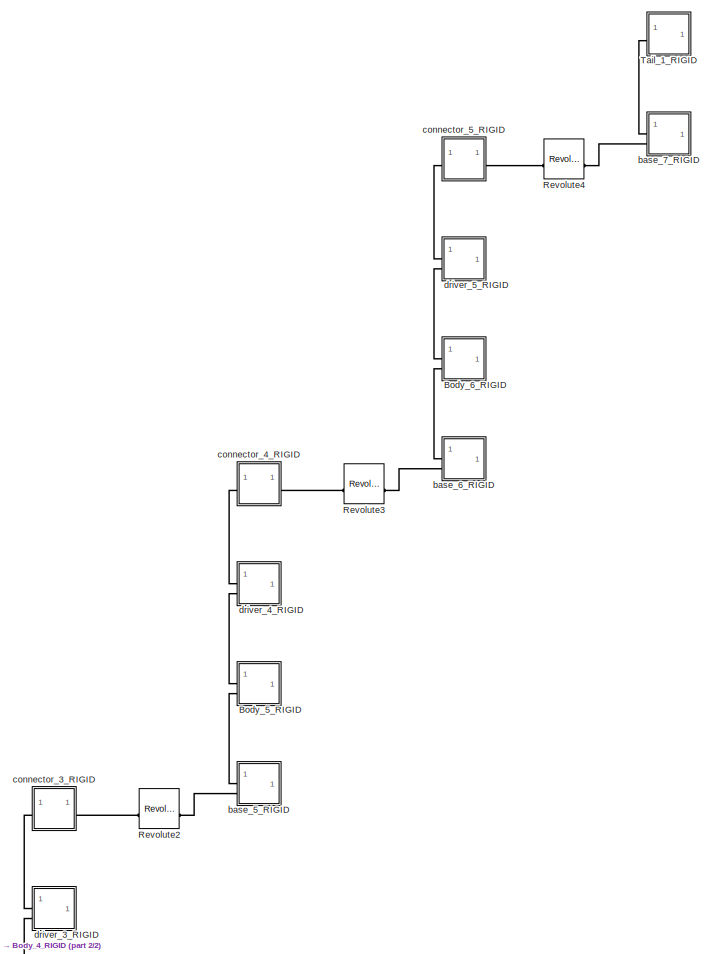
[diagram: root canvas - part 1/2, top right region]
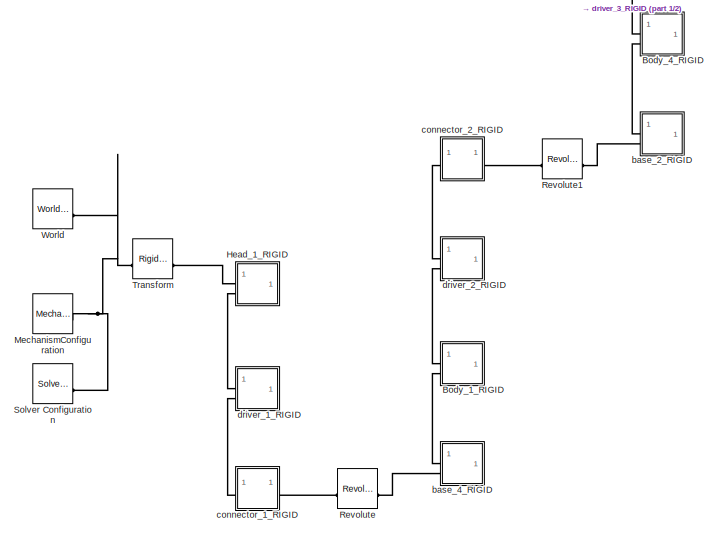
[diagram: root canvas - part 2/2, bottom left region]
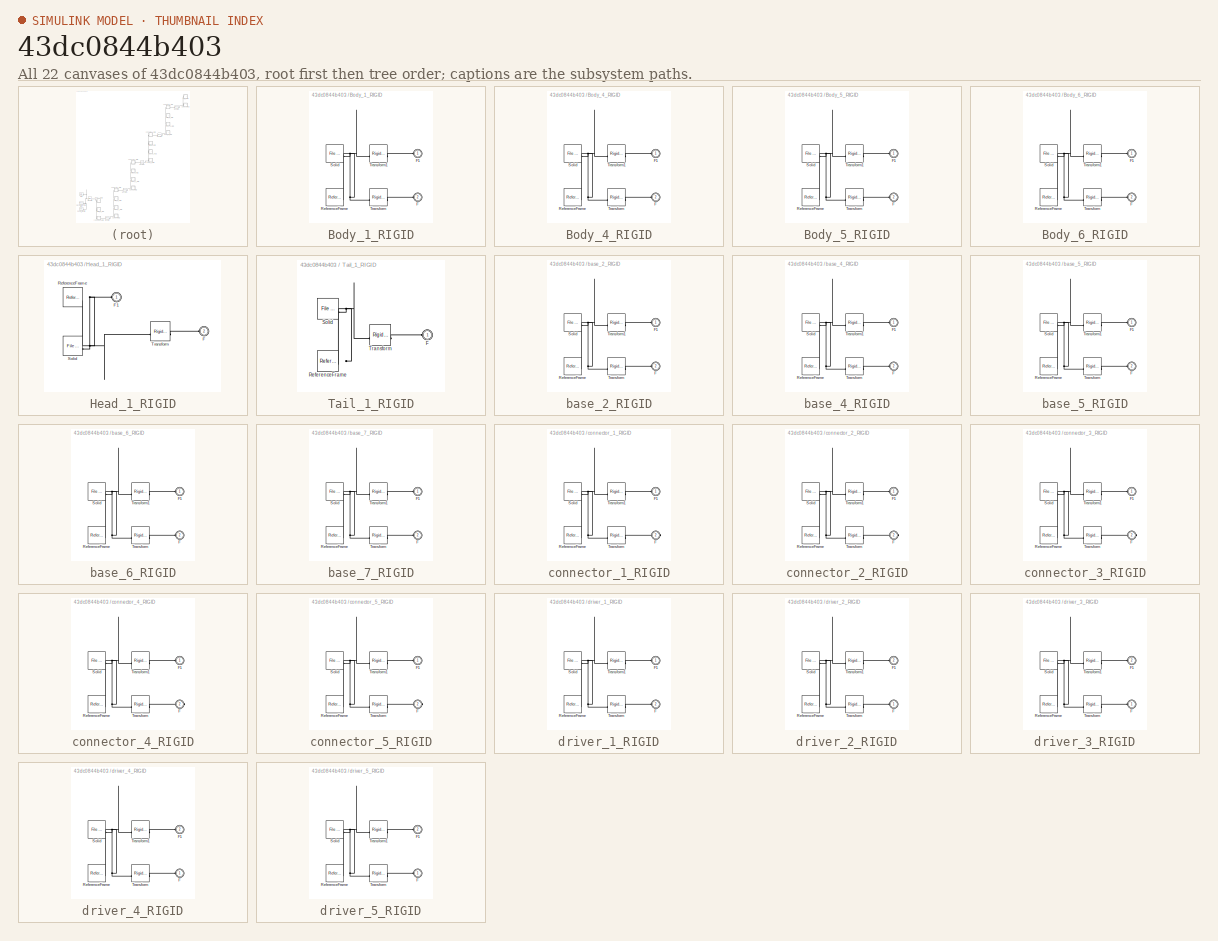
[diagram: thumbnail index - all 22 canvases of the model, root first then tree order]
MODEL slx_43dc0844b403
KIND model
CONFIG AbsTol = auto
CONFIG EnableMultiTasking = off
CONFIG FixedStep = auto
CONFIG MaxStep = auto
CONFIG MinStep = auto
CONFIG RelTol = 1e-3
CONFIG SampleTimeConstraint = Unconstrained
CONFIG SolverName = VariableStepAuto
CONFIG StartTime = 0.0
CONFIG StopTime = 10.0
WORKSPACE source: external: MATLAB File  (data not in archive)
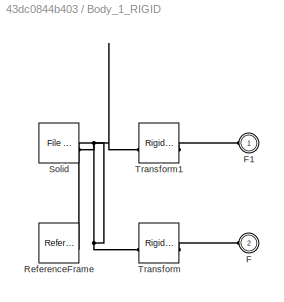
BLOCK [SubSystem] Body_1_RIGID
BLOCK [PMIOPort] Body_1_RIGID/F
  Port = 2
  Side = Left
BLOCK [PMIOPort] Body_1_RIGID/F1
  Side = Left
BLOCK [Reference] Body_1_RIGID/ReferenceFrame  REF=sm_lib/Frames and
Transforms/Reference
Frame
  SourceBlock = sm_lib/Frames and\nTransforms/Reference\nFrame
  SourceType = Reference\nFrame
BLOCK [Reference] Body_1_RIGID/Solid  REF=sm_lib/Body Elements/File Solid
  SourceBlock = sm_lib/Body Elements/File Solid
  SourceType = File Solid
BLOCK [Reference] Body_1_RIGID/Transform  REF=sm_lib/Frames and
Transforms/Rigid
Transform
  SourceBlock = sm_lib/Frames and\nTransforms/Rigid\nTransform
  SourceType = Rigid\nTransform
BLOCK [Reference] Body_1_RIGID/Transform1  REF=sm_lib/Frames and
Transforms/Rigid
Transform
  SourceBlock = sm_lib/Frames and\nTransforms/Rigid\nTransform
  SourceType = Rigid\nTransform
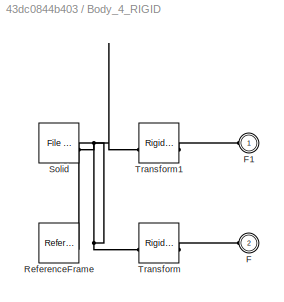
BLOCK [SubSystem] Body_4_RIGID
BLOCK [PMIOPort] Body_4_RIGID/F
  Port = 2
  Side = Left
BLOCK [PMIOPort] Body_4_RIGID/F1
  Side = Left
BLOCK [Reference] Body_4_RIGID/ReferenceFrame  REF=sm_lib/Frames and
Transforms/Reference
Frame
  SourceBlock = sm_lib/Frames and\nTransforms/Reference\nFrame
  SourceType = Reference\nFrame
BLOCK [Reference] Body_4_RIGID/Solid  REF=sm_lib/Body Elements/File Solid
  SourceBlock = sm_lib/Body Elements/File Solid
  SourceType = File Solid
BLOCK [Reference] Body_4_RIGID/Transform  REF=sm_lib/Frames and
Transforms/Rigid
Transform
  SourceBlock = sm_lib/Frames and\nTransforms/Rigid\nTransform
  SourceType = Rigid\nTransform
BLOCK [Reference] Body_4_RIGID/Transform1  REF=sm_lib/Frames and
Transforms/Rigid
Transform
  SourceBlock = sm_lib/Frames and\nTransforms/Rigid\nTransform
  SourceType = Rigid\nTransform
BLOCK [SubSystem] Body_5_RIGID
BLOCK [PMIOPort] Body_5_RIGID/F
  Port = 2
  Side = Left
BLOCK [PMIOPort] Body_5_RIGID/F1
  Side = Left
BLOCK [Reference] Body_5_RIGID/ReferenceFrame  REF=sm_lib/Frames and
Transforms/Reference
Frame
  SourceBlock = sm_lib/Frames and\nTransforms/Reference\nFrame
  SourceType = Reference\nFrame
BLOCK [Reference] Body_5_RIGID/Solid  REF=sm_lib/Body Elements/File Solid
  SourceBlock = sm_lib/Body Elements/File Solid
  SourceType = File Solid
BLOCK [Reference] Body_5_RIGID/Transform  REF=sm_lib/Frames and
Transforms/Rigid
Transform
  SourceBlock = sm_lib/Frames and\nTransforms/Rigid\nTransform
  SourceType = Rigid\nTransform
BLOCK [Reference] Body_5_RIGID/Transform1  REF=sm_lib/Frames and
Transforms/Rigid
Transform
  SourceBlock = sm_lib/Frames and\nTransforms/Rigid\nTransform
  SourceType = Rigid\nTransform
BLOCK [SubSystem] Body_6_RIGID
BLOCK [PMIOPort] Body_6_RIGID/F
  Port = 2
  Side = Left
BLOCK [PMIOPort] Body_6_RIGID/F1
  Side = Left
BLOCK [Reference] Body_6_RIGID/ReferenceFrame  REF=sm_lib/Frames and
Transforms/Reference
Frame
  SourceBlock = sm_lib/Frames and\nTransforms/Reference\nFrame
  SourceType = Reference\nFrame
BLOCK [Reference] Body_6_RIGID/Solid  REF=sm_lib/Body Elements/File Solid
  SourceBlock = sm_lib/Body Elements/File Solid
  SourceType = File Solid
BLOCK [Reference] Body_6_RIGID/Transform  REF=sm_lib/Frames and
Transforms/Rigid
Transform
  SourceBlock = sm_lib/Frames and\nTransforms/Rigid\nTransform
  SourceType = Rigid\nTransform
BLOCK [Reference] Body_6_RIGID/Transform1  REF=sm_lib/Frames and
Transforms/Rigid
Transform
  SourceBlock = sm_lib/Frames and\nTransforms/Rigid\nTransform
  SourceType = Rigid\nTransform
BLOCK [SubSystem] Head_1_RIGID
BLOCK [PMIOPort] Head_1_RIGID/F
  Port = 2
  Side = Left
BLOCK [PMIOPort] Head_1_RIGID/F1
  Side = Left
BLOCK [Reference] Head_1_RIGID/ReferenceFrame  REF=sm_lib/Frames and
Transforms/Reference
Frame
  SourceBlock = sm_lib/Frames and\nTransforms/Reference\nFrame
  SourceType = Reference\nFrame
BLOCK [Reference] Head_1_RIGID/Solid  REF=sm_lib/Body Elements/File Solid
  SourceBlock = sm_lib/Body Elements/File Solid
  SourceType = File Solid
BLOCK [Reference] Head_1_RIGID/Transform  REF=sm_lib/Frames and
Transforms/Rigid
Transform
  SourceBlock = sm_lib/Frames and\nTransforms/Rigid\nTransform
  SourceType = Rigid\nTransform
BLOCK [Reference] MechanismConfiguration  REF=sm_lib/Utilities/Mechanism
Configuration
  SourceBlock = sm_lib/Utilities/Mechanism\nConfiguration
  SourceType = Mechanism\nConfiguration
BLOCK [Reference] Revolute  REF=sm_lib/Joints/Revolute Joint
  SourceBlock = sm_lib/Joints/Revolute Joint
  SourceType = Revolute Joint
BLOCK [Reference] Revolute1  REF=sm_lib/Joints/Revolute Joint
  SourceBlock = sm_lib/Joints/Revolute Joint
  SourceType = Revolute Joint
BLOCK [Reference] Revolute2  REF=sm_lib/Joints/Revolute Joint
  SourceBlock = sm_lib/Joints/Revolute Joint
  SourceType = Revolute Joint
BLOCK [Reference] Revolute3  REF=sm_lib/Joints/Revolute Joint
  SourceBlock = sm_lib/Joints/Revolute Joint
  SourceType = Revolute Joint
BLOCK [Reference] Revolute4  REF=sm_lib/Joints/Revolute Joint
  SourceBlock = sm_lib/Joints/Revolute Joint
  SourceType = Revolute Joint
BLOCK [Reference] Solver Configuration  REF=nesl_utility/Solver
Configuration
  SourceBlock = nesl_utility/Solver\nConfiguration
  SourceType = Solver\nConfiguration
BLOCK [SubSystem] Tail_1_RIGID
BLOCK [PMIOPort] Tail_1_RIGID/F
  Side = Left
BLOCK [Reference] Tail_1_RIGID/ReferenceFrame  REF=sm_lib/Frames and
Transforms/Reference
Frame
  SourceBlock = sm_lib/Frames and\nTransforms/Reference\nFrame
  SourceType = Reference\nFrame
BLOCK [Reference] Tail_1_RIGID/Solid  REF=sm_lib/Body Elements/File Solid
  SourceBlock = sm_lib/Body Elements/File Solid
  SourceType = File Solid
BLOCK [Reference] Tail_1_RIGID/Transform  REF=sm_lib/Frames and
Transforms/Rigid
Transform
  SourceBlock = sm_lib/Frames and\nTransforms/Rigid\nTransform
  SourceType = Rigid\nTransform
BLOCK [Reference] Transform  REF=sm_lib/Frames and
Transforms/Rigid
Transform
  SourceBlock = sm_lib/Frames and\nTransforms/Rigid\nTransform
  SourceType = Rigid\nTransform
BLOCK [Reference] World  REF=sm_lib/Frames and
Transforms/World Frame
  SourceBlock = sm_lib/Frames and\nTransforms/World Frame
  SourceType = World Frame
BLOCK [SubSystem] base_2_RIGID
BLOCK [PMIOPort] base_2_RIGID/F
  Port = 2
  Side = Left
BLOCK [PMIOPort] base_2_RIGID/F1
  Side = Left
BLOCK [Reference] base_2_RIGID/ReferenceFrame  REF=sm_lib/Frames and
Transforms/Reference
Frame
  SourceBlock = sm_lib/Frames and\nTransforms/Reference\nFrame
  SourceType = Reference\nFrame
BLOCK [Reference] base_2_RIGID/Solid  REF=sm_lib/Body Elements/File Solid
  SourceBlock = sm_lib/Body Elements/File Solid
  SourceType = File Solid
BLOCK [Reference] base_2_RIGID/Transform  REF=sm_lib/Frames and
Transforms/Rigid
Transform
  SourceBlock = sm_lib/Frames and\nTransforms/Rigid\nTransform
  SourceType = Rigid\nTransform
BLOCK [Reference] base_2_RIGID/Transform1  REF=sm_lib/Frames and
Transforms/Rigid
Transform
  SourceBlock = sm_lib/Frames and\nTransforms/Rigid\nTransform
  SourceType = Rigid\nTransform
BLOCK [SubSystem] base_4_RIGID
BLOCK [PMIOPort] base_4_RIGID/F
  Port = 2
  Side = Left
BLOCK [PMIOPort] base_4_RIGID/F1
  Side = Left
BLOCK [Reference] base_4_RIGID/ReferenceFrame  REF=sm_lib/Frames and
Transforms/Reference
Frame
  SourceBlock = sm_lib/Frames and\nTransforms/Reference\nFrame
  SourceType = Reference\nFrame
BLOCK [Reference] base_4_RIGID/Solid  REF=sm_lib/Body Elements/File Solid
  SourceBlock = sm_lib/Body Elements/File Solid
  SourceType = File Solid
BLOCK [Reference] base_4_RIGID/Transform  REF=sm_lib/Frames and
Transforms/Rigid
Transform
  SourceBlock = sm_lib/Frames and\nTransforms/Rigid\nTransform
  SourceType = Rigid\nTransform
BLOCK [Reference] base_4_RIGID/Transform1  REF=sm_lib/Frames and
Transforms/Rigid
Transform
  SourceBlock = sm_lib/Frames and\nTransforms/Rigid\nTransform
  SourceType = Rigid\nTransform
BLOCK [SubSystem] base_5_RIGID
BLOCK [PMIOPort] base_5_RIGID/F
  Port = 2
  Side = Left
BLOCK [PMIOPort] base_5_RIGID/F1
  Side = Left
BLOCK [Reference] base_5_RIGID/ReferenceFrame  REF=sm_lib/Frames and
Transforms/Reference
Frame
  SourceBlock = sm_lib/Frames and\nTransforms/Reference\nFrame
  SourceType = Reference\nFrame
BLOCK [Reference] base_5_RIGID/Solid  REF=sm_lib/Body Elements/File Solid
  SourceBlock = sm_lib/Body Elements/File Solid
  SourceType = File Solid
BLOCK [Reference] base_5_RIGID/Transform  REF=sm_lib/Frames and
Transforms/Rigid
Transform
  SourceBlock = sm_lib/Frames and\nTransforms/Rigid\nTransform
  SourceType = Rigid\nTransform
BLOCK [Reference] base_5_RIGID/Transform1  REF=sm_lib/Frames and
Transforms/Rigid
Transform
  SourceBlock = sm_lib/Frames and\nTransforms/Rigid\nTransform
  SourceType = Rigid\nTransform
BLOCK [SubSystem] base_6_RIGID
BLOCK [PMIOPort] base_6_RIGID/F
  Port = 2
  Side = Left
BLOCK [PMIOPort] base_6_RIGID/F1
  Side = Left
BLOCK [Reference] base_6_RIGID/ReferenceFrame  REF=sm_lib/Frames and
Transforms/Reference
Frame
  SourceBlock = sm_lib/Frames and\nTransforms/Reference\nFrame
  SourceType = Reference\nFrame
BLOCK [Reference] base_6_RIGID/Solid  REF=sm_lib/Body Elements/File Solid
  SourceBlock = sm_lib/Body Elements/File Solid
  SourceType = File Solid
BLOCK [Reference] base_6_RIGID/Transform  REF=sm_lib/Frames and
Transforms/Rigid
Transform
  SourceBlock = sm_lib/Frames and\nTransforms/Rigid\nTransform
  SourceType = Rigid\nTransform
BLOCK [Reference] base_6_RIGID/Transform1  REF=sm_lib/Frames and
Transforms/Rigid
Transform
  SourceBlock = sm_lib/Frames and\nTransforms/Rigid\nTransform
  SourceType = Rigid\nTransform
BLOCK [SubSystem] base_7_RIGID
BLOCK [PMIOPort] base_7_RIGID/F
  Port = 2
  Side = Left
BLOCK [PMIOPort] base_7_RIGID/F1
  Side = Left
BLOCK [Reference] base_7_RIGID/ReferenceFrame  REF=sm_lib/Frames and
Transforms/Reference
Frame
  SourceBlock = sm_lib/Frames and\nTransforms/Reference\nFrame
  SourceType = Reference\nFrame
BLOCK [Reference] base_7_RIGID/Solid  REF=sm_lib/Body Elements/File Solid
  SourceBlock = sm_lib/Body Elements/File Solid
  SourceType = File Solid
BLOCK [Reference] base_7_RIGID/Transform  REF=sm_lib/Frames and
Transforms/Rigid
Transform
  SourceBlock = sm_lib/Frames and\nTransforms/Rigid\nTransform
  SourceType = Rigid\nTransform
BLOCK [Reference] base_7_RIGID/Transform1  REF=sm_lib/Frames and
Transforms/Rigid
Transform
  SourceBlock = sm_lib/Frames and\nTransforms/Rigid\nTransform
  SourceType = Rigid\nTransform
BLOCK [SubSystem] connector_1_RIGID
BLOCK [PMIOPort] connector_1_RIGID/F
  Port = 2
  Side = Right
BLOCK [PMIOPort] connector_1_RIGID/F1
  Side = Left
BLOCK [Reference] connector_1_RIGID/ReferenceFrame  REF=sm_lib/Frames and
Transforms/Reference
Frame
  SourceBlock = sm_lib/Frames and\nTransforms/Reference\nFrame
  SourceType = Reference\nFrame
BLOCK [Reference] connector_1_RIGID/Solid  REF=sm_lib/Body Elements/File Solid
  SourceBlock = sm_lib/Body Elements/File Solid
  SourceType = File Solid
BLOCK [Reference] connector_1_RIGID/Transform  REF=sm_lib/Frames and
Transforms/Rigid
Transform
  SourceBlock = sm_lib/Frames and\nTransforms/Rigid\nTransform
  SourceType = Rigid\nTransform
BLOCK [Reference] connector_1_RIGID/Transform1  REF=sm_lib/Frames and
Transforms/Rigid
Transform
  SourceBlock = sm_lib/Frames and\nTransforms/Rigid\nTransform
  SourceType = Rigid\nTransform
BLOCK [SubSystem] connector_2_RIGID
BLOCK [PMIOPort] connector_2_RIGID/F
  Port = 2
  Side = Right
BLOCK [PMIOPort] connector_2_RIGID/F1
  Side = Left
BLOCK [Reference] connector_2_RIGID/ReferenceFrame  REF=sm_lib/Frames and
Transforms/Reference
Frame
  SourceBlock = sm_lib/Frames and\nTransforms/Reference\nFrame
  SourceType = Reference\nFrame
BLOCK [Reference] connector_2_RIGID/Solid  REF=sm_lib/Body Elements/File Solid
  SourceBlock = sm_lib/Body Elements/File Solid
  SourceType = File Solid
BLOCK [Reference] connector_2_RIGID/Transform  REF=sm_lib/Frames and
Transforms/Rigid
Transform
  SourceBlock = sm_lib/Frames and\nTransforms/Rigid\nTransform
  SourceType = Rigid\nTransform
BLOCK [Reference] connector_2_RIGID/Transform1  REF=sm_lib/Frames and
Transforms/Rigid
Transform
  SourceBlock = sm_lib/Frames and\nTransforms/Rigid\nTransform
  SourceType = Rigid\nTransform
BLOCK [SubSystem] connector_3_RIGID
BLOCK [PMIOPort] connector_3_RIGID/F
  Port = 2
  Side = Right
BLOCK [PMIOPort] connector_3_RIGID/F1
  Side = Left
BLOCK [Reference] connector_3_RIGID/ReferenceFrame  REF=sm_lib/Frames and
Transforms/Reference
Frame
  SourceBlock = sm_lib/Frames and\nTransforms/Reference\nFrame
  SourceType = Reference\nFrame
BLOCK [Reference] connector_3_RIGID/Solid  REF=sm_lib/Body Elements/File Solid
  SourceBlock = sm_lib/Body Elements/File Solid
  SourceType = File Solid
BLOCK [Reference] connector_3_RIGID/Transform  REF=sm_lib/Frames and
Transforms/Rigid
Transform
  SourceBlock = sm_lib/Frames and\nTransforms/Rigid\nTransform
  SourceType = Rigid\nTransform
BLOCK [Reference] connector_3_RIGID/Transform1  REF=sm_lib/Frames and
Transforms/Rigid
Transform
  SourceBlock = sm_lib/Frames and\nTransforms/Rigid\nTransform
  SourceType = Rigid\nTransform
BLOCK [SubSystem] connector_4_RIGID
BLOCK [PMIOPort] connector_4_RIGID/F
  Port = 2
  Side = Right
BLOCK [PMIOPort] connector_4_RIGID/F1
  Side = Left
BLOCK [Reference] connector_4_RIGID/ReferenceFrame  REF=sm_lib/Frames and
Transforms/Reference
Frame
  SourceBlock = sm_lib/Frames and\nTransforms/Reference\nFrame
  SourceType = Reference\nFrame
BLOCK [Reference] connector_4_RIGID/Solid  REF=sm_lib/Body Elements/File Solid
  SourceBlock = sm_lib/Body Elements/File Solid
  SourceType = File Solid
BLOCK [Reference] connector_4_RIGID/Transform  REF=sm_lib/Frames and
Transforms/Rigid
Transform
  SourceBlock = sm_lib/Frames and\nTransforms/Rigid\nTransform
  SourceType = Rigid\nTransform
BLOCK [Reference] connector_4_RIGID/Transform1  REF=sm_lib/Frames and
Transforms/Rigid
Transform
  SourceBlock = sm_lib/Frames and\nTransforms/Rigid\nTransform
  SourceType = Rigid\nTransform
BLOCK [SubSystem] connector_5_RIGID
BLOCK [PMIOPort] connector_5_RIGID/F
  Port = 2
  Side = Right
BLOCK [PMIOPort] connector_5_RIGID/F1
  Side = Left
BLOCK [Reference] connector_5_RIGID/ReferenceFrame  REF=sm_lib/Frames and
Transforms/Reference
Frame
  SourceBlock = sm_lib/Frames and\nTransforms/Reference\nFrame
  SourceType = Reference\nFrame
BLOCK [Reference] connector_5_RIGID/Solid  REF=sm_lib/Body Elements/File Solid
  SourceBlock = sm_lib/Body Elements/File Solid
  SourceType = File Solid
BLOCK [Reference] connector_5_RIGID/Transform  REF=sm_lib/Frames and
Transforms/Rigid
Transform
  SourceBlock = sm_lib/Frames and\nTransforms/Rigid\nTransform
  SourceType = Rigid\nTransform
BLOCK [Reference] connector_5_RIGID/Transform1  REF=sm_lib/Frames and
Transforms/Rigid
Transform
  SourceBlock = sm_lib/Frames and\nTransforms/Rigid\nTransform
  SourceType = Rigid\nTransform
BLOCK [SubSystem] driver_1_RIGID
BLOCK [PMIOPort] driver_1_RIGID/F
  Port = 2
  Side = Left
BLOCK [PMIOPort] driver_1_RIGID/F1
  Side = Left
BLOCK [Reference] driver_1_RIGID/ReferenceFrame  REF=sm_lib/Frames and
Transforms/Reference
Frame
  SourceBlock = sm_lib/Frames and\nTransforms/Reference\nFrame
  SourceType = Reference\nFrame
BLOCK [Reference] driver_1_RIGID/Solid  REF=sm_lib/Body Elements/File Solid
  SourceBlock = sm_lib/Body Elements/File Solid
  SourceType = File Solid
BLOCK [Reference] driver_1_RIGID/Transform  REF=sm_lib/Frames and
Transforms/Rigid
Transform
  SourceBlock = sm_lib/Frames and\nTransforms/Rigid\nTransform
  SourceType = Rigid\nTransform
BLOCK [Reference] driver_1_RIGID/Transform1  REF=sm_lib/Frames and
Transforms/Rigid
Transform
  SourceBlock = sm_lib/Frames and\nTransforms/Rigid\nTransform
  SourceType = Rigid\nTransform
BLOCK [SubSystem] driver_2_RIGID
BLOCK [PMIOPort] driver_2_RIGID/F
  Side = Left
BLOCK [PMIOPort] driver_2_RIGID/F1
  Port = 2
  Side = Left
BLOCK [Reference] driver_2_RIGID/ReferenceFrame  REF=sm_lib/Frames and
Transforms/Reference
Frame
  SourceBlock = sm_lib/Frames and\nTransforms/Reference\nFrame
  SourceType = Reference\nFrame
BLOCK [Reference] driver_2_RIGID/Solid  REF=sm_lib/Body Elements/File Solid
  SourceBlock = sm_lib/Body Elements/File Solid
  SourceType = File Solid
BLOCK [Reference] driver_2_RIGID/Transform  REF=sm_lib/Frames and
Transforms/Rigid
Transform
  SourceBlock = sm_lib/Frames and\nTransforms/Rigid\nTransform
  SourceType = Rigid\nTransform
BLOCK [Reference] driver_2_RIGID/Transform1  REF=sm_lib/Frames and
Transforms/Rigid
Transform
  SourceBlock = sm_lib/Frames and\nTransforms/Rigid\nTransform
  SourceType = Rigid\nTransform
BLOCK [SubSystem] driver_3_RIGID
BLOCK [PMIOPort] driver_3_RIGID/F
  Side = Left
BLOCK [PMIOPort] driver_3_RIGID/F1
  Port = 2
  Side = Left
BLOCK [Reference] driver_3_RIGID/ReferenceFrame  REF=sm_lib/Frames and
Transforms/Reference
Frame
  SourceBlock = sm_lib/Frames and\nTransforms/Reference\nFrame
  SourceType = Reference\nFrame
BLOCK [Reference] driver_3_RIGID/Solid  REF=sm_lib/Body Elements/File Solid
  SourceBlock = sm_lib/Body Elements/File Solid
  SourceType = File Solid
BLOCK [Reference] driver_3_RIGID/Transform  REF=sm_lib/Frames and
Transforms/Rigid
Transform
  SourceBlock = sm_lib/Frames and\nTransforms/Rigid\nTransform
  SourceType = Rigid\nTransform
BLOCK [Reference] driver_3_RIGID/Transform1  REF=sm_lib/Frames and
Transforms/Rigid
Transform
  SourceBlock = sm_lib/Frames and\nTransforms/Rigid\nTransform
  SourceType = Rigid\nTransform
BLOCK [SubSystem] driver_4_RIGID
BLOCK [PMIOPort] driver_4_RIGID/F
  Side = Left
BLOCK [PMIOPort] driver_4_RIGID/F1
  Port = 2
  Side = Left
BLOCK [Reference] driver_4_RIGID/ReferenceFrame  REF=sm_lib/Frames and
Transforms/Reference
Frame
  SourceBlock = sm_lib/Frames and\nTransforms/Reference\nFrame
  SourceType = Reference\nFrame
BLOCK [Reference] driver_4_RIGID/Solid  REF=sm_lib/Body Elements/File Solid
  SourceBlock = sm_lib/Body Elements/File Solid
  SourceType = File Solid
BLOCK [Reference] driver_4_RIGID/Transform  REF=sm_lib/Frames and
Transforms/Rigid
Transform
  SourceBlock = sm_lib/Frames and\nTransforms/Rigid\nTransform
  SourceType = Rigid\nTransform
BLOCK [Reference] driver_4_RIGID/Transform1  REF=sm_lib/Frames and
Transforms/Rigid
Transform
  SourceBlock = sm_lib/Frames and\nTransforms/Rigid\nTransform
  SourceType = Rigid\nTransform
BLOCK [SubSystem] driver_5_RIGID
BLOCK [PMIOPort] driver_5_RIGID/F
  Side = Left
BLOCK [PMIOPort] driver_5_RIGID/F1
  Port = 2
  Side = Left
BLOCK [Reference] driver_5_RIGID/ReferenceFrame  REF=sm_lib/Frames and
Transforms/Reference
Frame
  SourceBlock = sm_lib/Frames and\nTransforms/Reference\nFrame
  SourceType = Reference\nFrame
BLOCK [Reference] driver_5_RIGID/Solid  REF=sm_lib/Body Elements/File Solid
  SourceBlock = sm_lib/Body Elements/File Solid
  SourceType = File Solid
BLOCK [Reference] driver_5_RIGID/Transform  REF=sm_lib/Frames and
Transforms/Rigid
Transform
  SourceBlock = sm_lib/Frames and\nTransforms/Rigid\nTransform
  SourceType = Rigid\nTransform
BLOCK [Reference] driver_5_RIGID/Transform1  REF=sm_lib/Frames and
Transforms/Rigid
Transform
  SourceBlock = sm_lib/Frames and\nTransforms/Rigid\nTransform
  SourceType = Rigid\nTransform
PLINE Body_1_RIGID/F1:RConn1 -- Body_1_RIGID/Transform1:RConn1
PLINE Body_1_RIGID/F:RConn1 -- Body_1_RIGID/Transform:RConn1
PNET net1: Body_1_RIGID/ReferenceFrame:RConn1 -- Body_1_RIGID/Solid:RConn1 -- Body_1_RIGID/Transform1:LConn1 -- Body_1_RIGID/Transform:LConn1
PLINE Body_1_RIGID:LConn1 -- driver_2_RIGID:LConn2
PLINE Body_1_RIGID:LConn2 -- base_4_RIGID:LConn1
PLINE Body_4_RIGID/F1:RConn1 -- Body_4_RIGID/Transform1:RConn1
PLINE Body_4_RIGID/F:RConn1 -- Body_4_RIGID/Transform:RConn1
PNET net2: Body_4_RIGID/ReferenceFrame:RConn1 -- Body_4_RIGID/Solid:RConn1 -- Body_4_RIGID/Transform1:LConn1 -- Body_4_RIGID/Transform:LConn1
PLINE Body_4_RIGID:LConn1 -- driver_3_RIGID:LConn2
PLINE Body_4_RIGID:LConn2 -- base_2_RIGID:LConn1
PLINE Body_5_RIGID/F1:RConn1 -- Body_5_RIGID/Transform1:RConn1
PLINE Body_5_RIGID/F:RConn1 -- Body_5_RIGID/Transform:RConn1
PNET net3: Body_5_RIGID/ReferenceFrame:RConn1 -- Body_5_RIGID/Solid:RConn1 -- Body_5_RIGID/Transform1:LConn1 -- Body_5_RIGID/Transform:LConn1
PLINE Body_5_RIGID:LConn1 -- driver_4_RIGID:LConn2
PLINE Body_5_RIGID:LConn2 -- base_5_RIGID:LConn1
PLINE Body_6_RIGID/F1:RConn1 -- Body_6_RIGID/Transform1:RConn1
PLINE Body_6_RIGID/F:RConn1 -- Body_6_RIGID/Transform:RConn1
PNET net4: Body_6_RIGID/ReferenceFrame:RConn1 -- Body_6_RIGID/Solid:RConn1 -- Body_6_RIGID/Transform1:LConn1 -- Body_6_RIGID/Transform:LConn1
PLINE Body_6_RIGID:LConn1 -- driver_5_RIGID:LConn2
PLINE Body_6_RIGID:LConn2 -- base_6_RIGID:LConn1
PNET net5: Head_1_RIGID/F1:RConn1 -- Head_1_RIGID/ReferenceFrame:RConn1 -- Head_1_RIGID/Solid:RConn1 -- Head_1_RIGID/Transform:LConn1
PLINE Head_1_RIGID/F:RConn1 -- Head_1_RIGID/Transform:RConn1
PLINE Head_1_RIGID:LConn1 -- Transform:RConn1
PLINE Head_1_RIGID:LConn2 -- driver_1_RIGID:LConn1
PNET net6: MechanismConfiguration:RConn1 -- Solver Configuration:RConn1 -- Transform:LConn1 -- World:RConn1
PLINE Revolute1:LConn1 -- connector_2_RIGID:RConn1
PLINE Revolute1:RConn1 -- base_2_RIGID:LConn2
PLINE Revolute2:LConn1 -- connector_3_RIGID:RConn1
PLINE Revolute2:RConn1 -- base_5_RIGID:LConn2
PLINE Revolute3:LConn1 -- connector_4_RIGID:RConn1
PLINE Revolute3:RConn1 -- base_6_RIGID:LConn2
PLINE Revolute4:LConn1 -- connector_5_RIGID:RConn1
PLINE Revolute4:RConn1 -- base_7_RIGID:LConn2
PLINE Revolute:LConn1 -- connector_1_RIGID:RConn1
PLINE Revolute:RConn1 -- base_4_RIGID:LConn2
PLINE Tail_1_RIGID/F:RConn1 -- Tail_1_RIGID/Transform:RConn1
PNET net7: Tail_1_RIGID/ReferenceFrame:RConn1 -- Tail_1_RIGID/Solid:RConn1 -- Tail_1_RIGID/Transform:LConn1
PLINE Tail_1_RIGID:LConn1 -- base_7_RIGID:LConn1
PLINE base_2_RIGID/F1:RConn1 -- base_2_RIGID/Transform1:RConn1
PLINE base_2_RIGID/F:RConn1 -- base_2_RIGID/Transform:RConn1
PNET net8: base_2_RIGID/ReferenceFrame:RConn1 -- base_2_RIGID/Solid:RConn1 -- base_2_RIGID/Transform1:LConn1 -- base_2_RIGID/Transform:LConn1
PLINE base_4_RIGID/F1:RConn1 -- base_4_RIGID/Transform1:RConn1
PLINE base_4_RIGID/F:RConn1 -- base_4_RIGID/Transform:RConn1
PNET net9: base_4_RIGID/ReferenceFrame:RConn1 -- base_4_RIGID/Solid:RConn1 -- base_4_RIGID/Transform1:LConn1 -- base_4_RIGID/Transform:LConn1
PLINE base_5_RIGID/F1:RConn1 -- base_5_RIGID/Transform1:RConn1
PLINE base_5_RIGID/F:RConn1 -- base_5_RIGID/Transform:RConn1
PNET net10: base_5_RIGID/ReferenceFrame:RConn1 -- base_5_RIGID/Solid:RConn1 -- base_5_RIGID/Transform1:LConn1 -- base_5_RIGID/Transform:LConn1
PLINE base_6_RIGID/F1:RConn1 -- base_6_RIGID/Transform1:RConn1
PLINE base_6_RIGID/F:RConn1 -- base_6_RIGID/Transform:RConn1
PNET net11: base_6_RIGID/ReferenceFrame:RConn1 -- base_6_RIGID/Solid:RConn1 -- base_6_RIGID/Transform1:LConn1 -- base_6_RIGID/Transform:LConn1
PLINE base_7_RIGID/F1:RConn1 -- base_7_RIGID/Transform1:RConn1
PLINE base_7_RIGID/F:RConn1 -- base_7_RIGID/Transform:RConn1
PNET net12: base_7_RIGID/ReferenceFrame:RConn1 -- base_7_RIGID/Solid:RConn1 -- base_7_RIGID/Transform1:LConn1 -- base_7_RIGID/Transform:LConn1
PLINE connector_1_RIGID/F1:RConn1 -- connector_1_RIGID/Transform1:RConn1
PLINE connector_1_RIGID/F:RConn1 -- connector_1_RIGID/Transform:RConn1
PNET net13: connector_1_RIGID/ReferenceFrame:RConn1 -- connector_1_RIGID/Solid:RConn1 -- connector_1_RIGID/Transform1:LConn1 -- connector_1_RIGID/Transform:LConn1
PLINE connector_1_RIGID:LConn1 -- driver_1_RIGID:LConn2
PLINE connector_2_RIGID/F1:RConn1 -- connector_2_RIGID/Transform1:RConn1
PLINE connector_2_RIGID/F:RConn1 -- connector_2_RIGID/Transform:RConn1
PNET net14: connector_2_RIGID/ReferenceFrame:RConn1 -- connector_2_RIGID/Solid:RConn1 -- connector_2_RIGID/Transform1:LConn1 -- connector_2_RIGID/Transform:LConn1
PLINE connector_2_RIGID:LConn1 -- driver_2_RIGID:LConn1
PLINE connector_3_RIGID/F1:RConn1 -- connector_3_RIGID/Transform1:RConn1
PLINE connector_3_RIGID/F:RConn1 -- connector_3_RIGID/Transform:RConn1
PNET net15: connector_3_RIGID/ReferenceFrame:RConn1 -- connector_3_RIGID/Solid:RConn1 -- connector_3_RIGID/Transform1:LConn1 -- connector_3_RIGID/Transform:LConn1
PLINE connector_3_RIGID:LConn1 -- driver_3_RIGID:LConn1
PLINE connector_4_RIGID/F1:RConn1 -- connector_4_RIGID/Transform1:RConn1
PLINE connector_4_RIGID/F:RConn1 -- connector_4_RIGID/Transform:RConn1
PNET net16: connector_4_RIGID/ReferenceFrame:RConn1 -- connector_4_RIGID/Solid:RConn1 -- connector_4_RIGID/Transform1:LConn1 -- connector_4_RIGID/Transform:LConn1
PLINE connector_4_RIGID:LConn1 -- driver_4_RIGID:LConn1
PLINE connector_5_RIGID/F1:RConn1 -- connector_5_RIGID/Transform1:RConn1
PLINE connector_5_RIGID/F:RConn1 -- connector_5_RIGID/Transform:RConn1
PNET net17: connector_5_RIGID/ReferenceFrame:RConn1 -- connector_5_RIGID/Solid:RConn1 -- connector_5_RIGID/Transform1:LConn1 -- connector_5_RIGID/Transform:LConn1
PLINE connector_5_RIGID:LConn1 -- driver_5_RIGID:LConn1
PLINE driver_1_RIGID/F1:RConn1 -- driver_1_RIGID/Transform1:RConn1
PLINE driver_1_RIGID/F:RConn1 -- driver_1_RIGID/Transform:RConn1
PNET net18: driver_1_RIGID/ReferenceFrame:RConn1 -- driver_1_RIGID/Solid:RConn1 -- driver_1_RIGID/Transform1:LConn1 -- driver_1_RIGID/Transform:LConn1
PLINE driver_2_RIGID/F1:RConn1 -- driver_2_RIGID/Transform1:RConn1
PLINE driver_2_RIGID/F:RConn1 -- driver_2_RIGID/Transform:RConn1
PNET net19: driver_2_RIGID/ReferenceFrame:RConn1 -- driver_2_RIGID/Solid:RConn1 -- driver_2_RIGID/Transform1:LConn1 -- driver_2_RIGID/Transform:LConn1
PLINE driver_3_RIGID/F1:RConn1 -- driver_3_RIGID/Transform1:RConn1
PLINE driver_3_RIGID/F:RConn1 -- driver_3_RIGID/Transform:RConn1
PNET net20: driver_3_RIGID/ReferenceFrame:RConn1 -- driver_3_RIGID/Solid:RConn1 -- driver_3_RIGID/Transform1:LConn1 -- driver_3_RIGID/Transform:LConn1
PLINE driver_4_RIGID/F1:RConn1 -- driver_4_RIGID/Transform1:RConn1
PLINE driver_4_RIGID/F:RConn1 -- driver_4_RIGID/Transform:RConn1
PNET net21: driver_4_RIGID/ReferenceFrame:RConn1 -- driver_4_RIGID/Solid:RConn1 -- driver_4_RIGID/Transform1:LConn1 -- driver_4_RIGID/Transform:LConn1
PLINE driver_5_RIGID/F1:RConn1 -- driver_5_RIGID/Transform1:RConn1
PLINE driver_5_RIGID/F:RConn1 -- driver_5_RIGID/Transform:RConn1
PNET net22: driver_5_RIGID/ReferenceFrame:RConn1 -- driver_5_RIGID/Solid:RConn1 -- driver_5_RIGID/Transform1:LConn1 -- driver_5_RIGID/Transform:LConn1
note: PNET lines group multi-terminal physical nets as a canonical sorted terminal list (undirected conserving connections); 2-terminal nets keep the pairwise PLINE form
